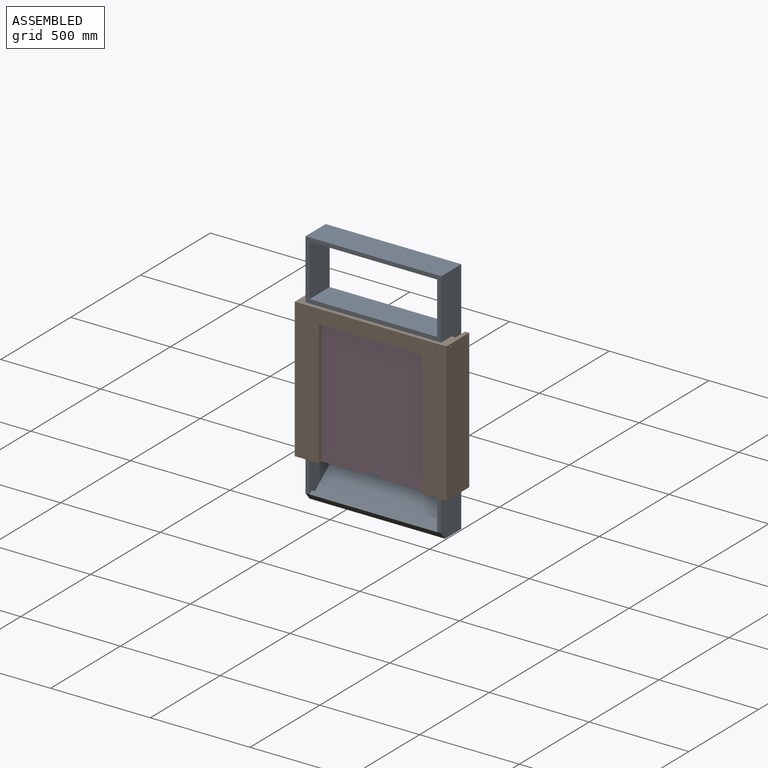
[diagram: assembled view]
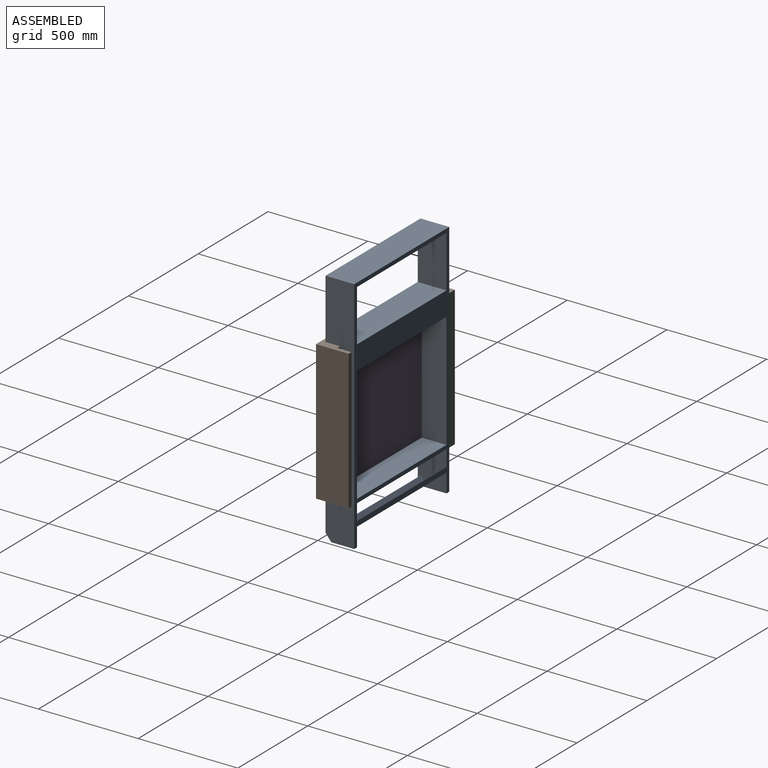
[diagram: assembled view, second angle]
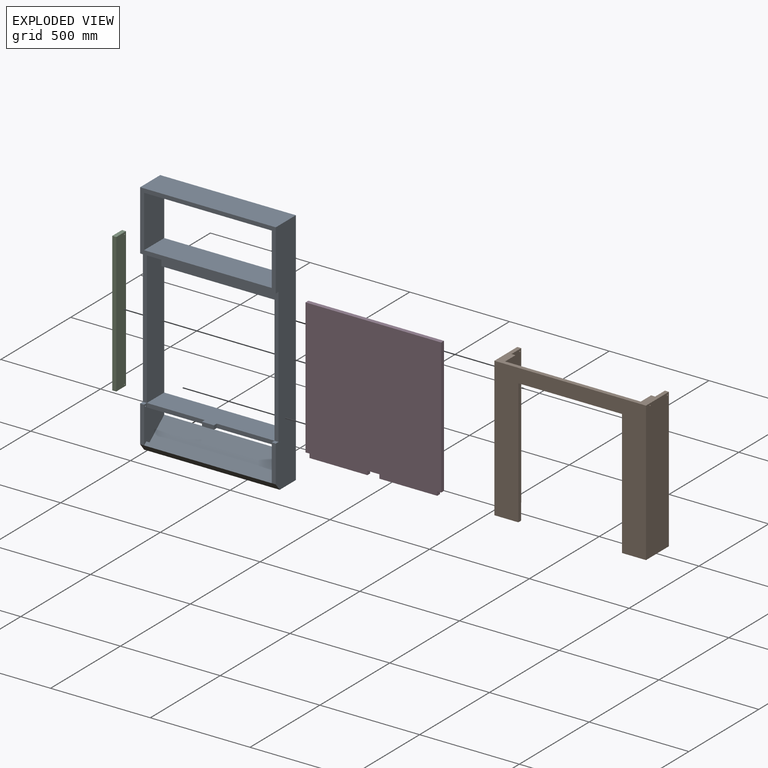
[diagram: exploded view]
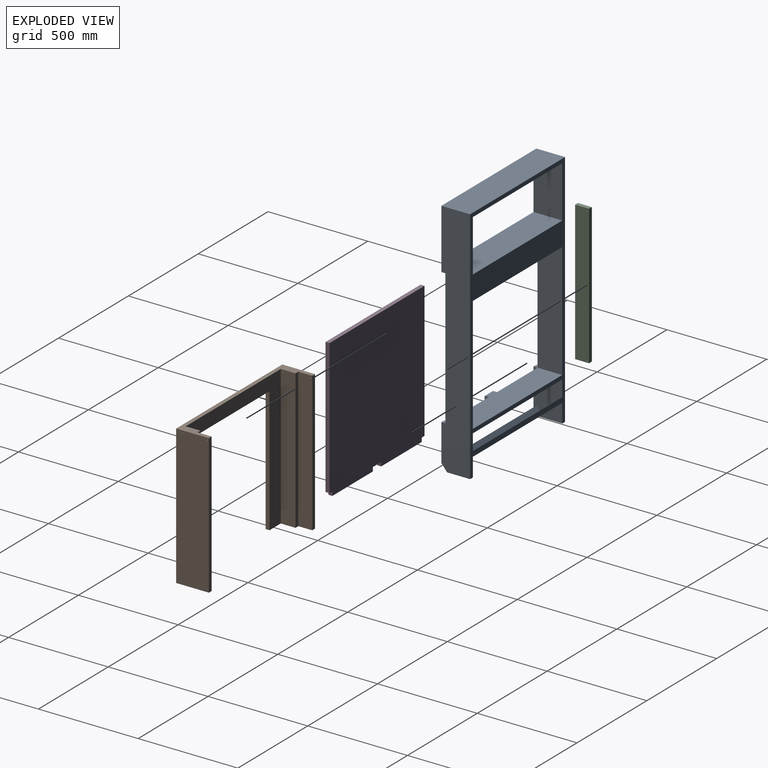
[diagram: exploded view, second angle]
ASSEMBLY  parts=4 mates=4
PART A: 41 faces, bbox 680x144x1200 mm
  f0: plane 184.91x20mm, normal (0,-1,0), area 3698.2mm2, adj f3,f4,f23,f36
  f1: plane 184.91x20mm, normal (0,-1,0), area 3698.2mm2, adj f2,f6,f26,f36
  f2: plane 1200x144mm, normal (1,0,0), area 158700mm2, adj f1,f15,f16,f18,f22,f25,f26,f35
  f3: plane 1200x144mm, normal (-1,0,0), area 158658.4mm2, adj f0,f15,f16,f18,f21,f22,f23,f29
  f4: plane 191.87x144mm, normal (1,0,0), area 19602.2mm2, adj f0,f8,f18,f19,f23,f30,f37,f38
  f5: plane 115.5x93.8mm, normal (1,0,0), area 5416.9mm2, adj f18,f34,f39
  f6: plane 191.87x144mm, normal (-1,0,0), area 19640.7mm2, adj f1,f8,f18,f24,f26,f37,f38,f40
  f7: plane 115.5x93.8mm, normal (-1,0,0), area 5416.9mm2, adj f18,f35,f39
  f8: plane 640x144mm, normal (0,0,-1), area 80560mm2, adj f4,f6,f14,f18,f19,f20,f24,f27
  f9: plane 680x124mm, normal (1,0,0), area 82320mm2, adj f11,f18,f21,f22,f31,f32
  f10: plane 260x144mm, normal (-1,0,0), area 37440mm2, adj f15,f17,f18,f33
  f11: plane 640x144mm, normal (0,0,1), area 80560mm2, adj f9,f13,f14,f18,f19,f20,f24,f27
  f12: plane 260x144mm, normal (1,0,0), area 37440mm2, adj f15,f17,f18,f33
  f13: plane 680x124mm, normal (-1,0,0), area 82320mm2, adj f11,f18,f22,f25,f31,f32
  f14: plane 60x20mm, normal (0,-1,0), area 1200mm2, adj f8,f11,f20,f27
  f15: plane 680x300mm, normal (0,-1,0), area 37600mm2, adj f2,f3,f10,f12,f16,f17,f22,f33
  f16: plane 680x144mm, normal (0,0,1), area 97920mm2, adj f2,f3,f15,f18
  f17: plane 640x144mm, normal (0,0,-1), area 92160mm2, adj f10,f12,f15,f18
  f18: plane 1200x680mm, normal (0,1,0), area 166889mm2, adj f2,f3,f4,f5,f6,f7,f8,f9
  f19: plane 290x20mm, normal (0,-1,0), area 5800mm2, adj f4,f8,f11,f20
  f20: plane 20x20mm, normal (-1,0,0), area 400mm2, adj f8,f11,f14,f19
  f21: plane 680x20mm, normal (0,-1,0), area 13600mm2, adj f3,f9,f22,f23
  f22: plane 680x124mm, normal (0,0,-1), area 80160mm2, adj f2,f3,f9,f13,f15,f21,f25,f31
  f23: plane 20x20mm, normal (0,0,1), area 400mm2, adj f0,f3,f4,f21
  f24: plane 290x20mm, normal (0,-1,0), area 5800mm2, adj f6,f8,f11,f27
  f25: plane 680x20mm, normal (0,-1,0), area 13600mm2, adj f2,f13,f22,f26
  f26: plane 20x20mm, normal (0,0,1), area 400mm2, adj f1,f2,f6,f25
  f27: plane 20x20mm, normal (1,0,0), area 400mm2, adj f8,f11,f14,f24
  f28: cone r=0mm half-angle=59deg, axis (-1,0,0), area 3.7mm2, adj f29
  f29: cylinder r=1mm len=40mm, axis (-1,0,0), area 251.3mm2, adj f3,f28
  f30: cylinder r=3.5mm len=20mm, axis (-1,0,0), area 439.8mm2, adj f3,f4
  f31: plane 640x100mm, normal (0,-1,0), area 64000mm2, adj f9,f13,f22,f32
  f32: plane 640x20mm, normal (0,0,-1), area 12800mm2, adj f9,f13,f18,f31
  f33: plane 640x144mm, normal (0,0,1), area 92160mm2, adj f10,f12,f15,f18
  f34: plane 115.5x20mm, normal (0,0,-1), area 2310.1mm2, adj f3,f5,f18,f36
  f35: plane 115.5x20mm, normal (0,0,-1), area 2310.1mm2, adj f2,f7,f18,f36
  f36: plane 680x35.09mm, normal (0,-0.78,-0.63), area 30739.1mm2, adj f0,f1,f2,f3,f34,f35,f37,f39
  f37: plane 640x15.53mm, normal (0,-0.63,0.78), area 12800mm2, adj f4,f6,f36,f40
  f38: plane 640x112.59mm, normal (0,-0.63,0.78), area 92821.1mm2, adj f4,f6,f18,f40
  f39: plane 640x115.5mm, normal (0,0.63,-0.78), area 95226.6mm2, adj f5,f7,f18,f36
  f40: plane 640x19.57mm, normal (0,0.78,0.63), area 16130.9mm2, adj f4,f6,f37,f38
PART B: 22 faces, bbox 760x164x700 mm
  f0: plane 760x164mm, normal (0,0,1), area 23920mm2, adj f1,f3,f4,f5,f6,f8,f9,f12
  f1: plane 700x20mm, normal (0,1,0), area 14000mm2, adj f0,f2,f3,f4
  f2: plane 164x120mm, normal (0,0,-1), area 6760mm2, adj f1,f3,f4,f5,f6,f7,f8,f9
  f3: plane 700x74mm, normal (1,0,0), area 51761.5mm2, adj f0,f1,f2,f9,f11
  f4: plane 700x70mm, normal (1,0,0), area 48961.5mm2, adj f0,f1,f2,f5,f10
  f5: plane 700x20mm, normal (0,1,0), area 14000mm2, adj f0,f2,f4,f6
  f6: plane 700x164mm, normal (-1,0,0), area 114723mm2, adj f0,f2,f5,f8,f10,f11
  f7: plane 630x20mm, normal (1,0,0), area 12600mm2, adj f2,f8,f9,f21
  f8: plane 760x700mm, normal (0,-1,0), area 204400mm2, adj f0,f2,f6,f7,f13,f17,f18,f21
  f9: plane 700x680mm, normal (0,1,0), area 148400mm2, adj f0,f2,f3,f7,f13,f14,f18,f21
  f10: cylinder r=3.5mm len=20mm, axis (-1,0,0), area 439.8mm2, adj f4,f6
  f11: cylinder r=3.5mm len=40mm, axis (-1,0,0), area 879.6mm2, adj f3,f6
  f12: plane 700x20mm, normal (0,1,0), area 14000mm2, adj f0,f13,f14,f15
  f13: plane 164x120mm, normal (0,0,-1), area 6760mm2, adj f8,f9,f12,f14,f15,f16,f17,f18
  f14: plane 700x74mm, normal (-1,0,0), area 51761.5mm2, adj f0,f9,f12,f13,f20
  f15: plane 700x70mm, normal (-1,0,0), area 48961.5mm2, adj f0,f12,f13,f16,f19
  f16: plane 700x20mm, normal (0,1,0), area 14000mm2, adj f0,f13,f15,f17
  f17: plane 700x164mm, normal (1,0,0), area 114723mm2, adj f0,f8,f13,f16,f19,f20
  f18: plane 630x20mm, normal (-1,0,0), area 12600mm2, adj f8,f9,f13,f21
  f19: cylinder r=3.5mm len=20mm, axis (1,0,0), area 439.8mm2, adj f15,f17
  f20: cylinder r=3.5mm len=40mm, axis (1,0,0), area 879.6mm2, adj f14,f17
  f21: plane 520x20mm, normal (0,0,-1), area 10400mm2, adj f7,f8,f9,f18
PART C: 8 faces, bbox 20x70x700 mm
  f0: plane 700x20mm, normal (0,-1,0), area 14000mm2, adj f1,f3,f4,f5
  f1: plane 70x20mm, normal (0,0,1), area 1400mm2, adj f0,f2,f4,f5
  f2: plane 700x20mm, normal (0,1,0), area 14000mm2, adj f1,f3,f4,f5
  f3: plane 70x20mm, normal (0,0,-1), area 1400mm2, adj f0,f2,f4,f5
  f4: plane 700x70mm, normal (-1,0,0), area 48923mm2, adj f0,f1,f2,f3,f6,f7
  f5: plane 700x70mm, normal (1,0,0), area 48923mm2, adj f0,f1,f2,f3,f6,f7
  f6: cylinder r=3.5mm len=20mm, axis (-1,0,0), area 439.8mm2, adj f4,f5
  f7: cylinder r=3.5mm len=20mm, axis (-1,0,0), area 439.8mm2, adj f4,f5
PART D: 18 faces, bbox 680x20x700 mm
  f0: plane 290x20mm, normal (0,0,-1), area 5800mm2, adj f2,f6,f8,f12
  f1: plane 290x20mm, normal (0,0,-1), area 5800mm2, adj f2,f6,f9,f11
  f2: plane 700x680mm, normal (0,-1,0), area 474000mm2, adj f0,f1,f3,f4,f5,f7,f8,f9
  f3: plane 680x20mm, normal (0,0,1), area 13600mm2, adj f2,f4,f5,f6
  f4: plane 680x20mm, normal (-1,0,0), area 13561.5mm2, adj f2,f3,f6,f13,f16
  f5: plane 680x20mm, normal (1,0,0), area 13600mm2, adj f2,f3,f6,f10
  f6: plane 700x680mm, normal (0,1,0), area 474000mm2, adj f0,f1,f3,f4,f5,f7,f8,f9
  f7: plane 60x20mm, normal (0,0,-1), area 1200mm2, adj f2,f6,f8,f9
  f8: plane 20x20mm, normal (1,0,0), area 400mm2, adj f0,f2,f6,f7
  f9: plane 20x20mm, normal (-1,0,0), area 400mm2, adj f1,f2,f6,f7
  f10: plane 20x20mm, normal (0,0,-1), area 400mm2, adj f2,f5,f6,f11
  f11: plane 20x20mm, normal (1,0,0), area 400mm2, adj f1,f2,f6,f10
  f12: plane 20x20mm, normal (-1,0,0), area 361.5mm2, adj f0,f2,f6,f13,f15
  f13: plane 20x20mm, normal (0,0,-1), area 400mm2, adj f2,f4,f6,f12
  f14: cone r=0mm half-angle=59deg, axis (-1,0,0), area 44.9mm2, adj f15
  f15: cylinder r=3.5mm len=40mm, axis (-1,0,0), area 879.6mm2, adj f12,f14
  f16: cylinder r=3.5mm len=40mm, axis (-1,0,0), area 879.6mm2, adj f4,f17
  f17: cone r=0mm half-angle=59deg, axis (-1,0,0), area 44.9mm2, adj f16
PLACE A t=(180.47,197.51,-5.52)mm fixed
PLACE B t=(180.47,197.51,-5.52)mm
PLACE C rot(axis=(-1,0,0),0deg) t=(180.47,197.51,-5.52)mm
PLACE D rot(axis=(-1,0,0),0deg) t=(180.47,197.51,-5.52)mm
MATE revolute D.f14 <-> A.f30  axis (-1,0,0) through (-139.53,63.51,-495.52)mm
MATE revolute D.f16 <-> B.f11  axis (-1,0,0) through (-159.53,63.51,184.48)mm
MATE revolute A.f28 <-> C.f7  axis (-1,0,0) through (-159.53,187.51,-495.52)mm
MATE revolute B.f19 <-> C.f6  axis (1,0,0) through (-179.53,187.51,184.48)mm
